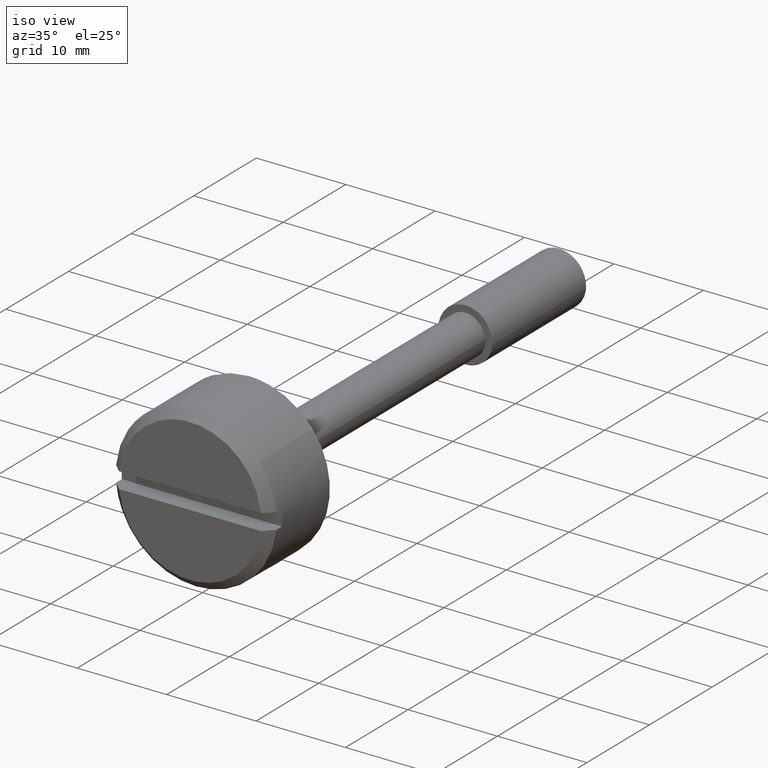
[diagram: clean part render]
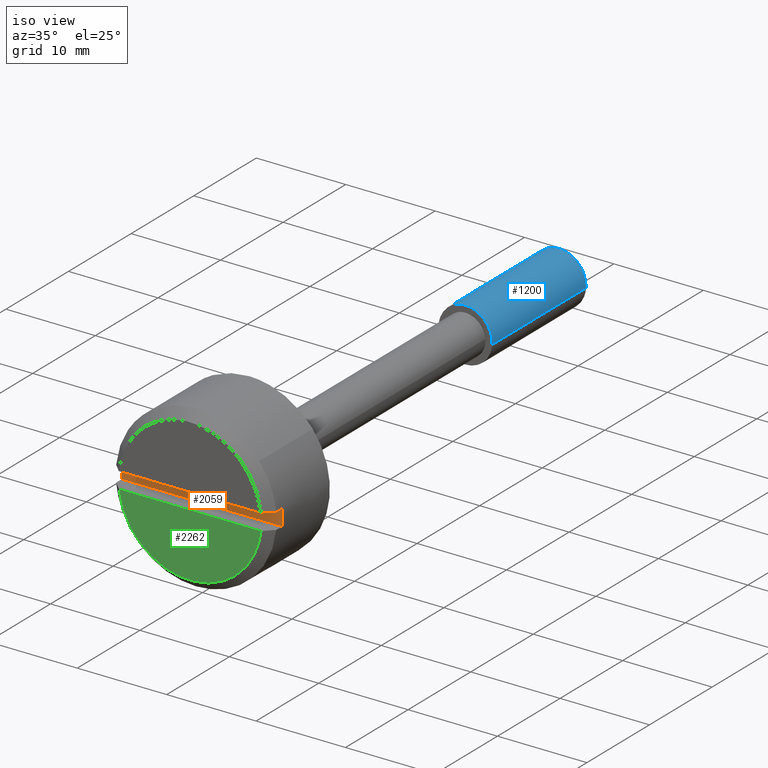
[diagram: same view with three faces highlighted in distinct colors, each labeled with its STEP entity id]
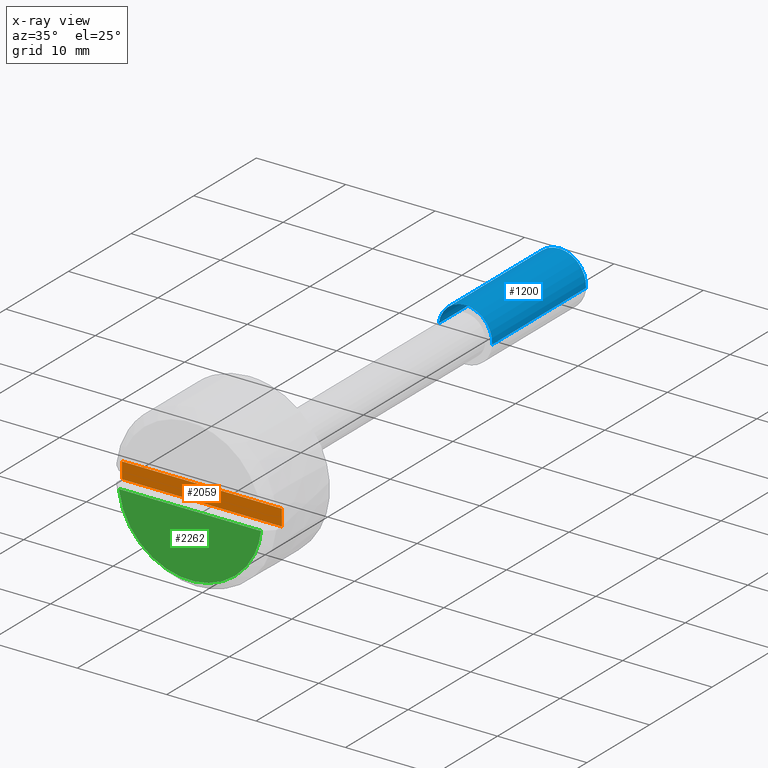
[diagram: x-ray of the same camera — body ghosted, the three highlighted faces saturated]
A machine part, iso view with three faces highlighted in distinct colors.
The next image is the same camera in x-ray (body ghosted, the three faces saturated) — at least one of them is partly hidden behind the body in this view.
Their STEP definitions:

[orange] entity #2059 — the highlighted face is a freeform B-spline surface patch.
#1824=CARTESIAN_POINT('',(-10.100000000000000,-8.954886933959578,0.900000000000000));
#1825=VERTEX_POINT('',#1824);
#1831=CARTESIAN_POINT('',(-10.100000000000000,-8.954886933959628,-0.900000000000000));
#1832=VERTEX_POINT('',#1831);
#1833=CARTESIAN_POINT('',(-10.100000000000000,-8.954886933959578,0.900000000000000));
#1834=CARTESIAN_POINT('',(-10.099999999999996,-9.045340337332908,9.757820E-016));
#1835=CARTESIAN_POINT('',(-10.100000000000000,-8.954886933959628,-0.900000000000000));
#1843=(BOUNDED_CURVE()B_SPLINE_CURVE(2,(#1833,#1834,#1835),.UNSPECIFIED.,.F.,.U.)CURVE()GEOMETRIC_REPRESENTATION_ITEM()QUASI_UNIFORM_CURVE()RATIONAL_B_SPLINE_CURVE((1.0,0.994987437106620,1.0))REPRESENTATION_ITEM(''));
#1844=EDGE_CURVE('',#1825,#1832,#1843,.T.);
#1870=CARTESIAN_POINT('',(-10.100000000000000,8.954886933959628,-0.900000000000000));
#1871=VERTEX_POINT('',#1870);
#1877=CARTESIAN_POINT('',(-10.100000000000000,8.954886933959578,0.900000000000000));
#1878=VERTEX_POINT('',#1877);
#1879=CARTESIAN_POINT('',(-10.100000000000000,8.954886933959628,-0.900000000000000));
#1880=CARTESIAN_POINT('',(-10.099999999999998,9.045340337332908,-3.252607E-015));
#1881=CARTESIAN_POINT('',(-10.100000000000000,8.954886933959578,0.899999999999998));
#1889=(BOUNDED_CURVE()B_SPLINE_CURVE(2,(#1879,#1880,#1881),.UNSPECIFIED.,.F.,.U.)CURVE()GEOMETRIC_REPRESENTATION_ITEM()QUASI_UNIFORM_CURVE()RATIONAL_B_SPLINE_CURVE((1.0,0.994987437106620,1.0))REPRESENTATION_ITEM(''));
#1890=EDGE_CURVE('',#1871,#1878,#1889,.T.);
#2011=CARTESIAN_POINT('',(-10.100000000000000,8.954886933959628,-0.900000000000000));
#2012=CARTESIAN_POINT('',(-10.100000000000000,-8.954886933959628,-0.900000000000000));
#2013=QUASI_UNIFORM_CURVE('',1,(#2011,#2012),.UNSPECIFIED.,.F.,.U.);
#2014=EDGE_CURVE('',#1871,#1832,#2013,.T.);
#2044=CARTESIAN_POINT('',(-10.100000000000000,-9.898879732889245,-0.989909973183274));
#2045=CARTESIAN_POINT('',(-10.100000000000000,-9.898879732889245,0.989909908810258));
#2046=CARTESIAN_POINT('',(-10.100000000000000,9.898879571956707,-0.989909973183274));
#2047=CARTESIAN_POINT('',(-10.100000000000000,9.898879571956707,0.989909908810258));
#2048=B_SPLINE_SURFACE_WITH_KNOTS('',1,1,((#2044,#2046),(#2045,#2047)),.UNSPECIFIED.,.F.,.F.,.U.,(2,2),(2,2),(0.0,1.979819881993532),(0.0,19.797759304845950),.UNSPECIFIED.);
#2049=CARTESIAN_POINT('',(-10.100000000000000,8.954886933959578,0.900000000000000));
#2050=CARTESIAN_POINT('',(-10.100000000000000,-8.954886933959578,0.900000000000000));
#2051=QUASI_UNIFORM_CURVE('',1,(#2049,#2050),.UNSPECIFIED.,.F.,.U.);
#2052=EDGE_CURVE('',#1878,#1825,#2051,.T.);
#2053=ORIENTED_EDGE('',*,*,#2052,.F.);
#2054=ORIENTED_EDGE('',*,*,#1890,.F.);
#2055=ORIENTED_EDGE('',*,*,#2014,.T.);
#2056=ORIENTED_EDGE('',*,*,#1844,.F.);
#2057=EDGE_LOOP('',(#2053,#2054,#2055,#2056));
#2058=FACE_OUTER_BOUND('',#2057,.T.);
#2059=ADVANCED_FACE('',(#2058),#2048,.T.);

[blue] entity #1200 — the highlighted face is a freeform B-spline surface patch.
#1037=CARTESIAN_POINT('',(47.0,2.979028579080066,0.354102704062252));
#1038=VERTEX_POINT('',#1037);
#1056=CARTESIAN_POINT('',(47.0,-2.994404395263539,-0.183145618638275));
#1057=VERTEX_POINT('',#1056);
#1071=CARTESIAN_POINT('',(32.0,-2.994404395263539,-0.183145618638275));
#1072=VERTEX_POINT('',#1071);
#1073=CARTESIAN_POINT('',(47.0,-2.994404395263539,-0.183145618638275));
#1074=CARTESIAN_POINT('',(32.0,-2.994404395263539,-0.183145618638275));
#1075=QUASI_UNIFORM_CURVE('',1,(#1073,#1074),.UNSPECIFIED.,.F.,.U.);
#1076=EDGE_CURVE('',#1057,#1072,#1075,.T.);
#1093=CARTESIAN_POINT('',(32.0,2.979028579080066,0.354102704062252));
#1094=VERTEX_POINT('',#1093);
#1110=CARTESIAN_POINT('',(47.0,2.979028579080066,0.354102704062252));
#1111=CARTESIAN_POINT('',(32.0,2.979028579080066,0.354102704062252));
#1112=QUASI_UNIFORM_CURVE('',1,(#1110,#1111),.UNSPECIFIED.,.F.,.U.);
#1113=EDGE_CURVE('',#1038,#1094,#1112,.T.);
#1118=CARTESIAN_POINT('',(47.375000000000043,-2.994404395265600,-0.183145618604571));
#1119=CARTESIAN_POINT('',(47.375000000000036,-3.177550013870171,2.811258776661029));
#1120=CARTESIAN_POINT('',(47.375000000000043,-0.183145618604571,2.994404395265600));
#1121=CARTESIAN_POINT('',(47.375000000000036,2.644630472518504,3.167358590197582));
#1122=CARTESIAN_POINT('',(47.375000000000043,2.979028579091000,0.354102703970275));
#1123=CARTESIAN_POINT('',(31.615625000000001,-2.994404395265600,-0.183145618604571));
#1124=CARTESIAN_POINT('',(31.615625000000009,-3.177550013870171,2.811258776661029));
#1125=CARTESIAN_POINT('',(31.615625000000001,-0.183145618604571,2.994404395265600));
#1126=CARTESIAN_POINT('',(31.615625000000005,2.644630472518504,3.167358590197582));
#1127=CARTESIAN_POINT('',(31.615625000000001,2.979028579091000,0.354102703970275));
#1135=(BOUNDED_SURFACE()B_SPLINE_SURFACE(2,1,((#1118,#1123),(#1119,#1124),(#1120,#1125),(#1121,#1126),(#1122,#1127)),.UNSPECIFIED.,.F.,.F.,.U.)B_SPLINE_SURFACE_WITH_KNOTS((3,2,3),(2,2),(0.0,4.970562748477139,9.742302987015194),(0.0,15.759375000000031),.UNSPECIFIED.)GEOMETRIC_REPRESENTATION_ITEM()RATIONAL_B_SPLINE_SURFACE(((1.0,1.0),(0.707106781186548,0.707106781186548),(1.0,1.0),(0.718822509939086,0.718822509939086),(0.977505800795127,0.977505800795127)))REPRESENTATION_ITEM('')SURFACE());
#1136=CARTESIAN_POINT('',(47.000000000000043,0.0,3.000000000000032));
#1137=VERTEX_POINT('',#1136);
#1138=CARTESIAN_POINT('',(47.0,0.0,3.0));
#1139=CARTESIAN_POINT('',(47.000000000000007,2.664523577688410,3.000000000000000));
#1140=CARTESIAN_POINT('',(47.000000000000007,2.979028579080066,0.354102704062252));
#1148=(BOUNDED_CURVE()B_SPLINE_CURVE(2,(#1138,#1139,#1140),.UNSPECIFIED.,.F.,.U.)B_SPLINE_CURVE_WITH_KNOTS((3,3),(0.0,0.459124947010417),.UNSPECIFIED.)CURVE()GEOMETRIC_REPRESENTATION_ITEM()RATIONAL_B_SPLINE_CURVE((1.0,0.731050832865127,0.956026754167431))REPRESENTATION_ITEM(''));
#1149=EDGE_CURVE('',#1137,#1038,#1148,.T.);
#1150=ORIENTED_EDGE('',*,*,#1149,.T.);
#1151=ORIENTED_EDGE('',*,*,#1113,.T.);
#1152=CARTESIAN_POINT('',(32.0,0.0,3.0));
#1153=VERTEX_POINT('',#1152);
#1154=CARTESIAN_POINT('',(32.0,0.0,3.0));
#1155=CARTESIAN_POINT('',(31.999999999999996,2.664523577688410,3.000000000000000));
#1156=CARTESIAN_POINT('',(31.999999999999996,2.979028579080066,0.354102704062252));
#1164=(BOUNDED_CURVE()B_SPLINE_CURVE(2,(#1154,#1155,#1156),.UNSPECIFIED.,.F.,.U.)B_SPLINE_CURVE_WITH_KNOTS((3,3),(0.0,0.229562473505208),.UNSPECIFIED.)CURVE()GEOMETRIC_REPRESENTATION_ITEM()RATIONAL_B_SPLINE_CURVE((1.0,0.731050832865127,0.956026754167431))REPRESENTATION_ITEM(''));
#1165=EDGE_CURVE('',#1153,#1094,#1164,.T.);
#1166=ORIENTED_EDGE('',*,*,#1165,.F.);
#1167=CARTESIAN_POINT('',(31.999999999999996,-2.994404395263540,-0.183145618638275));
#1168=CARTESIAN_POINT('',(31.999999999999996,-3.0,-0.091658289929566));
#1169=CARTESIAN_POINT('',(32.0,-3.0,0.0));
#1170=CARTESIAN_POINT('',(31.999999999999996,-3.0,3.0));
#1171=CARTESIAN_POINT('',(32.0,0.0,3.0));
#1179=(BOUNDED_CURVE()B_SPLINE_CURVE(2,(#1167,#1168,#1169,#1170,#1171),.UNSPECIFIED.,.F.,.U.)B_SPLINE_CURVE_WITH_KNOTS((3,2,3),(0.739332962238084,0.750000000000000,1.0),.UNSPECIFIED.)CURVE()GEOMETRIC_REPRESENTATION_ITEM()RATIONAL_B_SPLINE_CURVE((0.976072041664877,0.987502787898831,1.0,0.707106781186548,1.0))REPRESENTATION_ITEM(''));
#1180=EDGE_CURVE('',#1072,#1153,#1179,.T.);
#1181=ORIENTED_EDGE('',*,*,#1180,.F.);
#1182=ORIENTED_EDGE('',*,*,#1076,.F.);
#1183=CARTESIAN_POINT('',(47.0,-2.994404395263539,-0.183145618638275));
#1184=CARTESIAN_POINT('',(47.0,-3.000000000000000,-0.091658289929565));
#1185=CARTESIAN_POINT('',(47.0,-3.0,0.0));
#1186=CARTESIAN_POINT('',(47.000000000000007,-3.0,3.0));
#1187=CARTESIAN_POINT('',(47.0,0.0,3.0));
#1195=(BOUNDED_CURVE()B_SPLINE_CURVE(2,(#1183,#1184,#1185,#1186,#1187),.UNSPECIFIED.,.F.,.U.)B_SPLINE_CURVE_WITH_KNOTS((3,2,3),(0.478665924476168,0.500000000000000,1.0),.UNSPECIFIED.)CURVE()GEOMETRIC_REPRESENTATION_ITEM()RATIONAL_B_SPLINE_CURVE((0.976072041664877,0.987502787898831,1.0,0.707106781186548,1.0))REPRESENTATION_ITEM(''));
#1196=EDGE_CURVE('',#1057,#1137,#1195,.T.);
#1197=ORIENTED_EDGE('',*,*,#1196,.T.);
#1198=EDGE_LOOP('',(#1150,#1151,#1166,#1181,#1182,#1197));
#1199=FACE_OUTER_BOUND('',#1198,.T.);
#1200=ADVANCED_FACE('',(#1199),#1135,.T.);

[green] entity #2262 — the highlighted face is a freeform B-spline surface patch.
#2017=CARTESIAN_POINT('',(-11.999900000000000,7.949213797602840,-0.900000000000000));
#2018=VERTEX_POINT('',#2017);
#2026=CARTESIAN_POINT('',(-11.999900000000000,-7.949213797602840,-0.900000000000000));
#2027=VERTEX_POINT('',#2026);
#2028=CARTESIAN_POINT('',(-11.999900000000000,7.949213797602840,-0.900000000000000));
#2029=CARTESIAN_POINT('',(-11.999900000000000,-7.949213797602840,-0.900000000000000));
#2030=QUASI_UNIFORM_CURVE('',1,(#2028,#2029),.UNSPECIFIED.,.F.,.U.);
#2031=EDGE_CURVE('',#2018,#2027,#2030,.T.);
#2193=CARTESIAN_POINT('',(-11.999900000000000,7.949213797602880,-0.900000000000000));
#2194=CARTESIAN_POINT('',(-11.999900000000000,7.145360716946408,-8.0));
#2195=CARTESIAN_POINT('',(-11.999900000000000,0.0,-8.0));
#2196=CARTESIAN_POINT('',(-11.999900000000000,-7.145360716946406,-8.0));
#2197=CARTESIAN_POINT('',(-11.999900000000000,-7.949213797602880,-0.900000000000004));
#2205=(BOUNDED_CURVE()B_SPLINE_CURVE(2,(#2193,#2194,#2195,#2196,#2197),.UNSPECIFIED.,.F.,.U.)B_SPLINE_CURVE_WITH_KNOTS((3,2,3),(0.0,0.500000000000000,1.0),.UNSPECIFIED.)CURVE()GEOMETRIC_REPRESENTATION_ITEM()RATIONAL_B_SPLINE_CURVE((1.0,0.745821694508815,1.0,0.745821694508815,1.0))REPRESENTATION_ITEM(''));
#2206=EDGE_CURVE('',#2018,#2027,#2205,.T.);
#2253=CARTESIAN_POINT('',(-11.999900000000000,-8.743340523655251,-8.354644986238753));
#2254=CARTESIAN_POINT('',(-11.999900000000000,8.743340665798272,-8.354644986238753));
#2255=CARTESIAN_POINT('',(-11.999900000000000,-8.743340523655251,-0.545354823324340));
#2256=CARTESIAN_POINT('',(-11.999900000000000,8.743340665798272,-0.545354823324340));
#2257=B_SPLINE_SURFACE_WITH_KNOTS('',1,1,((#2253,#2255),(#2254,#2256)),.UNSPECIFIED.,.F.,.F.,.U.,(2,2),(2,2),(0.0,17.486681189453520),(0.0,7.809290162914413),.UNSPECIFIED.);
#2258=ORIENTED_EDGE('',*,*,#2031,.F.);
#2259=ORIENTED_EDGE('',*,*,#2206,.T.);
#2260=EDGE_LOOP('',(#2258,#2259));
#2261=FACE_OUTER_BOUND('',#2260,.T.);
#2262=ADVANCED_FACE('',(#2261),#2257,.F.);